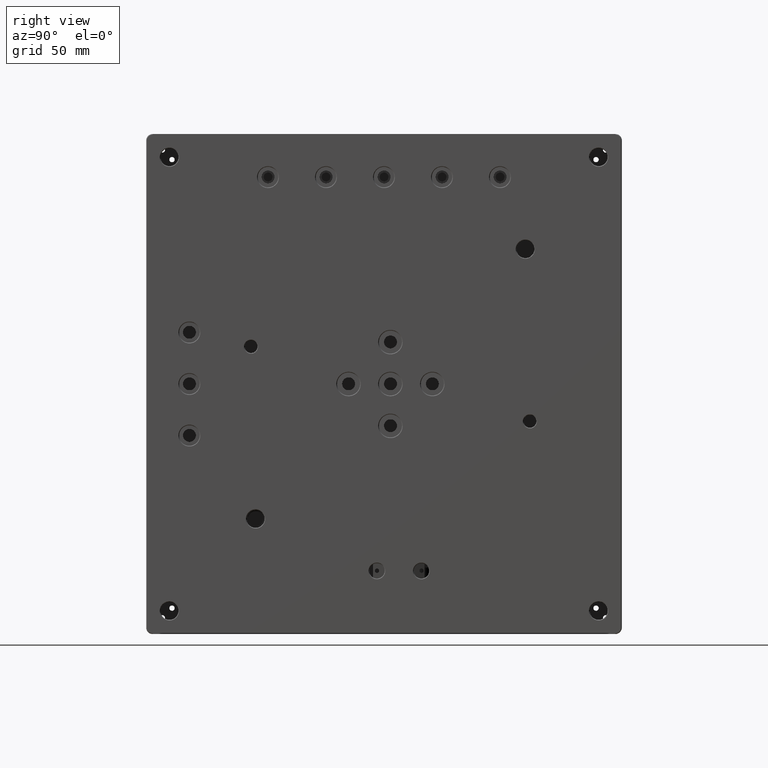
[diagram: clean part render]
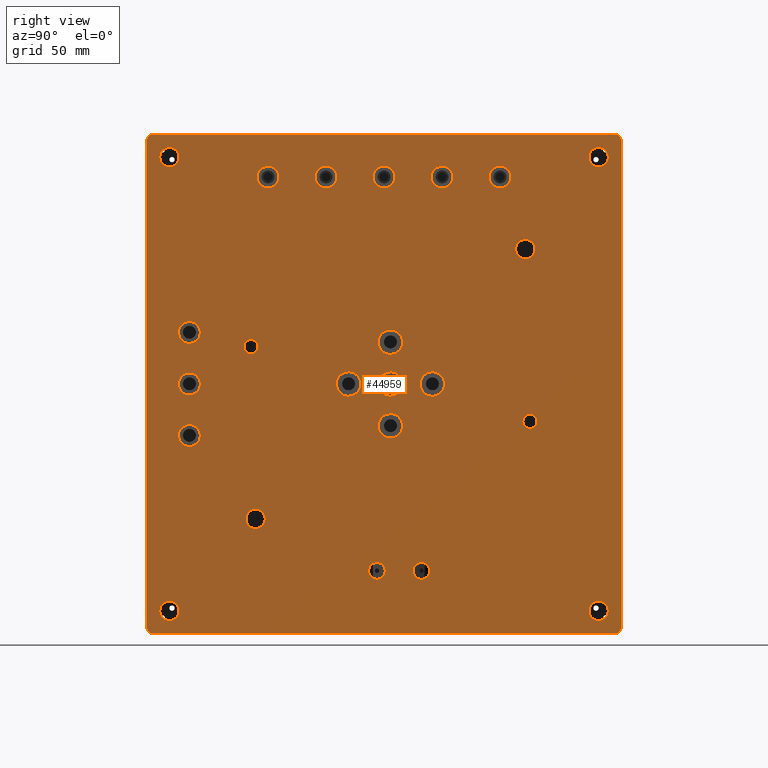
[diagram: same view with one face highlighted and labeled with its STEP entity id]
A machine part, right view. The second image highlights one B-rep face of the part: STEP entity #44959.
In plain terms, the highlighted planar face has unit normal (-1, 0, 0).
Its self-contained STEP definition (entity closure, byte-faithful):
#84 = CARTESIAN_POINT ( 'NONE',  ( -12.30929485513501831, 99.16283872211774053, 324.6518036156059566 ) ) ;
#93 = AXIS2_PLACEMENT_3D ( 'NONE', #40295, #43556, #8223 ) ;
#148 = FACE_BOUND ( 'NONE', #12038, .T. ) ;
#331 = VERTEX_POINT ( 'NONE', #43949 ) ;
#839 = VECTOR ( 'NONE', #15186, 1000.000000000000000 ) ;
#862 = DIRECTION ( 'NONE',  ( 2.312964634635740492E-16, 1.000000000000000000, 0.000000000000000000 ) ) ;
#1100 = CARTESIAN_POINT ( 'NONE',  ( -12.30929485513502897, 4.011035106506220416, 252.5000000000000000 ) ) ;
#1372 = EDGE_CURVE ( 'NONE', #22342, #22342, #3920, .T. ) ;
#1493 = CARTESIAN_POINT ( 'NONE',  ( -12.30929485515219923, -194.4889648935207163, 409.0000000000047180 ) ) ;
#1690 = DIRECTION ( 'NONE',  ( 1.000000000000000000, -2.040851148207906679E-16, 2.040851148208003314E-16 ) ) ;
#2229 = CARTESIAN_POINT ( 'NONE',  ( -12.30929485513500588, 34.51103510651039130, 371.9999999999991473 ) ) ;
#2728 = FACE_BOUND ( 'NONE', #10335, .T. ) ;
#2787 = VERTEX_POINT ( 'NONE', #31001 ) ;
#2901 = CARTESIAN_POINT ( 'NONE',  ( -12.30929485512887922, 108.1947276508600879, 191.0122669485149345 ) ) ;
#3048 = AXIS2_PLACEMENT_3D ( 'NONE', #36163, #18606, #15793 ) ;
#3133 = CARTESIAN_POINT ( 'NONE',  ( -12.30929485513734356, -194.4889648934968420, 220.0000000000046327 ) ) ;
#3190 = FACE_BOUND ( 'NONE', #42252, .T. ) ;
#3322 = CIRCLE ( 'NONE', #27985, 7.499999999999951150 ) ;
#3358 = DIRECTION ( 'NONE',  ( 2.312964634636211343E-16, 1.000000000000000000, 0.000000000000000000 ) ) ;
#3394 = AXIS2_PLACEMENT_3D ( 'NONE', #4408, #7930, #14730 ) ;
#3422 = FACE_BOUND ( 'NONE', #9379, .T. ) ;
#3809 = ORIENTED_EDGE ( 'NONE', *, *, #23868, .F. ) ;
#3920 = CIRCLE ( 'NONE', #36799, 8.500000000000229150 ) ;
#3974 = ORIENTED_EDGE ( 'NONE', *, *, #30062, .T. ) ;
#3992 = EDGE_LOOP ( 'NONE', ( #43173 ) ) ;
#4131 = CIRCLE ( 'NONE', #23612, 6.500000000016825652 ) ;
#4187 = CARTESIAN_POINT ( 'NONE',  ( -12.30929485513729738, 173.5110351065080181, 219.9999999999956231 ) ) ;
#4310 = ORIENTED_EDGE ( 'NONE', *, *, #23667, .F. ) ;
#4390 = CIRCLE ( 'NONE', #28338, 8.500000000000229150 ) ;
#4408 = CARTESIAN_POINT ( 'NONE',  ( -12.30929485513502364, 27.01103510650559159, 219.9999999999992042 ) ) ;
#4786 = EDGE_CURVE ( 'NONE', #34719, #331, #21327, .T. ) ;
#5025 = DIRECTION ( 'NONE',  ( 1.000000000000000000, -1.020425574104014969E-16, 2.165838172753861172E-30 ) ) ;
#5253 = ORIENTED_EDGE ( 'NONE', *, *, #4786, .F. ) ;
#5262 = AXIS2_PLACEMENT_3D ( 'NONE', #33757, #1690, #16672 ) ;
#5653 = CIRCLE ( 'NONE', #8602, 5.499999999983629095 ) ;
#5740 = CARTESIAN_POINT ( 'NONE',  ( -12.30929485511855859, 169.0110351065009411, 30.99999999999558753 ) ) ;
#6085 = ORIENTED_EDGE ( 'NONE', *, *, #15911, .T. ) ;
#6088 = CIRCLE ( 'NONE', #93, 9.499999999999841904 ) ;
#6360 = CARTESIAN_POINT ( 'NONE',  ( -12.30929485513195587, -194.4889648934960746, 31.00000000000449063 ) ) ;
#6620 = VECTOR ( 'NONE', #17424, 1000.000000000000000 ) ;
#6690 = EDGE_LOOP ( 'NONE', ( #6085 ) ) ;
#6705 = FACE_BOUND ( 'NONE', #22396, .T. ) ;
#6864 = DIRECTION ( 'NONE',  ( 1.000000000000000000, -1.020425574103950012E-16, 1.020425574104001657E-16 ) ) ;
#7087 = VERTEX_POINT ( 'NONE', #21142 ) ;
#7385 = VERTEX_POINT ( 'NONE', #39224 ) ;
#7664 = EDGE_LOOP ( 'NONE', ( #42872 ) ) ;
#7704 = LINE ( 'NONE', #4187, #839 ) ;
#7728 = DIRECTION ( 'NONE',  ( 2.040851148208033143E-16, 1.000000000000000000, 0.000000000000000000 ) ) ;
#7779 = CARTESIAN_POINT ( 'NONE',  ( -12.30929485513508759, -169.4889648934901913, 396.0000000000042064 ) ) ;
#7911 = EDGE_CURVE ( 'NONE', #7087, #7087, #6088, .T. ) ;
#7930 = DIRECTION ( 'NONE',  ( 1.000000000000000000, -1.826024711554532681E-16, 4.534738096202632944E-30 ) ) ;
#7977 = AXIS2_PLACEMENT_3D ( 'NONE', #44839, #34761, #37592 ) ;
#8022 = AXIS2_PLACEMENT_3D ( 'NONE', #18555, #30014, #33060 ) ;
#8134 = DIRECTION ( 'NONE',  ( 1.000000000000000000, -1.020425574103996480E-16, 2.499044045485130245E-30 ) ) ;
#8223 = DIRECTION ( 'NONE',  ( 1.826024711554564235E-16, 1.000000000000000000, 0.000000000000000000 ) ) ;
#8539 = CARTESIAN_POINT ( 'NONE',  ( -12.30929485513504495, -152.9889648934927209, 260.0000000000039222 ) ) ;
#8602 = AXIS2_PLACEMENT_3D ( 'NONE', #18930, #36948, #33216 ) ;
#8617 = CARTESIAN_POINT ( 'NONE',  ( -12.30929485509013688, 173.5110351064500946, 30.99999999999550937 ) ) ;
#9073 = EDGE_CURVE ( 'NONE', #17180, #17180, #18109, .T. ) ;
#9075 = EDGE_LOOP ( 'NONE', ( #26233 ) ) ;
#9199 = VERTEX_POINT ( 'NONE', #23471 ) ;
#9379 = EDGE_LOOP ( 'NONE', ( #38044 ) ) ;
#9434 = AXIS2_PLACEMENT_3D ( 'NONE', #10871, #42024, #20714 ) ;
#9488 = VERTEX_POINT ( 'NONE', #2229 ) ;
#9625 = CARTESIAN_POINT ( 'NONE',  ( -12.30929485513502009, -10.48896489348962824, 380.5000000000004547 ) ) ;
#10111 = CARTESIAN_POINT ( 'NONE',  ( -12.30929485514051436, -15.98896489349309391, 75.00000000000025580 ) ) ;
#10228 = FACE_BOUND ( 'NONE', #18412, .T. ) ;
#10335 = EDGE_LOOP ( 'NONE', ( #44573 ) ) ;
#10455 = FACE_BOUND ( 'NONE', #31576, .T. ) ;
#10871 = CARTESIAN_POINT ( 'NONE',  ( -12.30929485512888277, -189.9889648934990873, 31.00000000000450129 ) ) ;
#11261 = ORIENTED_EDGE ( 'NONE', *, *, #35289, .T. ) ;
#11432 = CARTESIAN_POINT ( 'NONE',  ( -12.30929485519854971, -189.9889648934898219, 409.0000000000046612 ) ) ;
#11704 = VERTEX_POINT ( 'NONE', #6360 ) ;
#11751 = EDGE_CURVE ( 'NONE', #32840, #32840, #18476, .T. ) ;
#11792 = CIRCLE ( 'NONE', #42433, 7.500000000000007105 ) ;
#11832 = EDGE_LOOP ( 'NONE', ( #16849 ) ) ;
#12038 = EDGE_LOOP ( 'NONE', ( #37126 ) ) ;
#12042 = CARTESIAN_POINT ( 'NONE',  ( -12.30929485513499877, 163.5110351065013674, 43.99999999999601386 ) ) ;
#12275 = DIRECTION ( 'NONE',  ( 1.000000000000000000, -2.668805347668270758E-16, 6.552720225043325142E-30 ) ) ;
#12315 = AXIS2_PLACEMENT_3D ( 'NONE', #84, #14368, #20922 ) ;
#12996 = VERTEX_POINT ( 'NONE', #13218 ) ;
#13100 = CARTESIAN_POINT ( 'NONE',  ( -12.30929485513499522, 156.0110351065099223, 395.9999999999959641 ) ) ;
#13174 = DIRECTION ( 'NONE',  ( 1.000000000000000000, -2.668805347668179546E-16, 4.003208021502479847E-16 ) ) ;
#13218 = CARTESIAN_POINT ( 'NONE',  ( -12.30929485513502541, -46.98896489348943817, 380.5000000000015348 ) ) ;
#13348 = EDGE_CURVE ( 'NONE', #44052, #44052, #3322, .T. ) ;
#13613 = CARTESIAN_POINT ( 'NONE',  ( -12.30929485513502719, -55.48896489348966554, 380.5000000000015348 ) ) ;
#13903 = EDGE_CURVE ( 'NONE', #43359, #43359, #25786, .T. ) ;
#13915 = CIRCLE ( 'NONE', #38574, 4.500000000007275958 ) ;
#13929 = EDGE_CURVE ( 'NONE', #26051, #26051, #38472, .T. ) ;
#14354 = CARTESIAN_POINT ( 'NONE',  ( -12.30929485513502897, -37.98896489349442618, 210.5000000000007958 ) ) ;
#14368 = DIRECTION ( 'NONE',  ( 1.000000000000000000, -1.156482317317961211E-16, -3.469446951953582141E-16 ) ) ;
#14426 = FACE_BOUND ( 'NONE', #21245, .T. ) ;
#14730 = DIRECTION ( 'NONE',  ( 1.826024711554532188E-16, 1.000000000000000000, 0.000000000000000000 ) ) ;
#15050 = DIRECTION ( 'NONE',  ( 2.040851148207953271E-16, 0.000000000000000000, -1.000000000000000000 ) ) ;
#15085 = AXIS2_PLACEMENT_3D ( 'NONE', #38174, #17323, #20374 ) ;
#15155 = VERTEX_POINT ( 'NONE', #33412 ) ;
#15186 = DIRECTION ( 'NONE',  ( -1.225408946310943922E-14, -1.225408946310909686E-14, -1.000000000000000000 ) ) ;
#15331 = EDGE_CURVE ( 'NONE', #41027, #41027, #5653, .T. ) ;
#15560 = CARTESIAN_POINT ( 'NONE',  ( -12.30929485513504673, -161.4889648934945683, 180.0000000000039222 ) ) ;
#15783 = ORIENTED_EDGE ( 'NONE', *, *, #39130, .F. ) ;
#15793 = DIRECTION ( 'NONE',  ( 3.154042683605922524E-16, 1.000000000000000000, 0.000000000000000000 ) ) ;
#15820 = AXIS2_PLACEMENT_3D ( 'NONE', #29665, #8134, #36685 ) ;
#15825 = EDGE_LOOP ( 'NONE', ( #29871 ) ) ;
#15911 = EDGE_CURVE ( 'NONE', #9199, #9199, #41536, .T. ) ;
#16037 = VERTEX_POINT ( 'NONE', #8539 ) ;
#16339 = CARTESIAN_POINT ( 'NONE',  ( -12.30929485513502541, -5.488964893494418185, 210.5000000000000000 ) ) ;
#16642 = ORIENTED_EDGE ( 'NONE', *, *, #22704, .F. ) ;
#16672 = DIRECTION ( 'NONE',  ( 2.040851148207953271E-16, 0.000000000000000000, -1.000000000000000000 ) ) ;
#16735 = CARTESIAN_POINT ( 'NONE',  ( -12.30929485514053923, 18.51103510650691675, 75.00000000000028422 ) ) ;
#16849 = ORIENTED_EDGE ( 'NONE', *, *, #13929, .F. ) ;
#16938 = AXIS2_PLACEMENT_3D ( 'NONE', #30626, #35048, #31525 ) ;
#17023 = FACE_OUTER_BOUND ( 'NONE', #44631, .T. ) ;
#17180 = VERTEX_POINT ( 'NONE', #14354 ) ;
#17323 = DIRECTION ( 'NONE',  ( 1.000000000000000000, -9.130123557773140418E-17, -1.826024711554509508E-16 ) ) ;
#17424 = DIRECTION ( 'NONE',  ( -1.225408380549088667E-14, 1.225408380549055220E-14, 1.000000000000000000 ) ) ;
#17429 = LINE ( 'NONE', #42230, #30351 ) ;
#17707 = CIRCLE ( 'NONE', #16938, 7.500000000000007105 ) ;
#17713 = FACE_BOUND ( 'NONE', #20233, .T. ) ;
#17755 = CIRCLE ( 'NONE', #8022, 9.499999999999841904 ) ;
#17950 = FACE_BOUND ( 'NONE', #9075, .T. ) ;
#18069 = AXIS2_PLACEMENT_3D ( 'NONE', #13613, #35384, #27896 ) ;
#18109 = CIRCLE ( 'NONE', #15085, 9.500000000000008882 ) ;
#18174 = CARTESIAN_POINT ( 'NONE',  ( -12.30929485513502009, -5.488964893494418185, 220.0000000000000000 ) ) ;
#18412 = EDGE_LOOP ( 'NONE', ( #19168 ) ) ;
#18476 = CIRCLE ( 'NONE', #31206, 6.500000000016825652 ) ;
#18555 = CARTESIAN_POINT ( 'NONE',  ( -12.30929485513503074, -5.488964893493621489, 252.5000000000000000 ) ) ;
#18606 = DIRECTION ( 'NONE',  ( 1.000000000000000000, -3.154042683605962953E-16, -1.577021341802885827E-16 ) ) ;
#18646 = CARTESIAN_POINT ( 'NONE',  ( -12.30929485513683552, -189.9889648934897082, 413.4999999999784563 ) ) ;
#18930 = CARTESIAN_POINT ( 'NONE',  ( -12.30929485513523858, -113.6726574378693613, 248.9877330514850655 ) ) ;
#19168 = ORIENTED_EDGE ( 'NONE', *, *, #32349, .F. ) ;
#19220 = AXIS2_PLACEMENT_3D ( 'NONE', #32774, #44220, #40711 ) ;
#19774 = DIRECTION ( 'NONE',  ( 2.040851148207953271E-16, 1.000000000000000000, 0.000000000000000000 ) ) ;
#19923 = AXIS2_PLACEMENT_3D ( 'NONE', #38944, #6864, #15050 ) ;
#20233 = EDGE_LOOP ( 'NONE', ( #38004 ) ) ;
#20374 = DIRECTION ( 'NONE',  ( -1.826024711554532188E-16, 0.000000000000000000, -1.000000000000000000 ) ) ;
#20587 = DIRECTION ( 'NONE',  ( 1.000000000000000000, -1.020425574104003260E-16, -1.020425574103951491E-16 ) ) ;
#20714 = DIRECTION ( 'NONE',  ( -3.854941057670096839E-16, -1.000000000000000000, 0.000000000000000000 ) ) ;
#20922 = DIRECTION ( 'NONE',  ( -2.312964634635740492E-16, 0.000000000000000000, -1.000000000000000000 ) ) ;
#20926 = LINE ( 'NONE', #3133, #6620 ) ;
#20969 = EDGE_LOOP ( 'NONE', ( #43098 ) ) ;
#20986 = FACE_BOUND ( 'NONE', #38257, .T. ) ;
#21142 = CARTESIAN_POINT ( 'NONE',  ( -12.30929485513502897, 4.011035106504626135, 187.5000000000000000 ) ) ;
#21245 = EDGE_LOOP ( 'NONE', ( #22097 ) ) ;
#21327 = LINE ( 'NONE', #29271, #29531 ) ;
#21430 = VERTEX_POINT ( 'NONE', #43189 ) ;
#21796 = CIRCLE ( 'NONE', #15820, 8.500000000000063949 ) ;
#22058 = CARTESIAN_POINT ( 'NONE',  ( -12.30929485507203758, -102.6407685091080992, 115.3481963843940576 ) ) ;
#22097 = ORIENTED_EDGE ( 'NONE', *, *, #9073, .F. ) ;
#22342 = VERTEX_POINT ( 'NONE', #29832 ) ;
#22396 = EDGE_LOOP ( 'NONE', ( #11261 ) ) ;
#22704 = EDGE_CURVE ( 'NONE', #43025, #11704, #32575, .T. ) ;
#22815 = DIRECTION ( 'NONE',  ( 0.000000000000000000, 1.000000000000000000, 0.000000000000000000 ) ) ;
#22825 = ORIENTED_EDGE ( 'NONE', *, *, #33071, .F. ) ;
#22848 = CARTESIAN_POINT ( 'NONE',  ( -12.30929485513508936, -176.9889648934901345, 396.0000000000042064 ) ) ;
#23258 = CIRCLE ( 'NONE', #3048, 5.499999999979548804 ) ;
#23471 = CARTESIAN_POINT ( 'NONE',  ( -12.30929485513503785, -169.4889648934987463, 44.00000000000418510 ) ) ;
#23612 = AXIS2_PLACEMENT_3D ( 'NONE', #16735, #12275, #45045 ) ;
#23636 = EDGE_CURVE ( 'NONE', #26165, #26165, #30342, .T. ) ;
#23667 = EDGE_CURVE ( 'NONE', #45517, #26011, #13915, .T. ) ;
#23868 = EDGE_CURVE ( 'NONE', #30132, #30132, #46048, .T. ) ;
#23874 = DIRECTION ( 'NONE',  ( -2.312964634635740492E-16, 0.000000000000000000, -1.000000000000000000 ) ) ;
#23987 = VERTEX_POINT ( 'NONE', #2901 ) ;
#24293 = ORIENTED_EDGE ( 'NONE', *, *, #32022, .F. ) ;
#25039 = EDGE_CURVE ( 'NONE', #15155, #15155, #4390, .T. ) ;
#25362 = CARTESIAN_POINT ( 'NONE',  ( -12.30929485514051080, -15.98896489349309391, 68.49999999998343014 ) ) ;
#25387 = DIRECTION ( 'NONE',  ( -1.224610687353160217E-16, -1.000000000000000000, 0.000000000000000000 ) ) ;
#25409 = ORIENTED_EDGE ( 'NONE', *, *, #40790, .F. ) ;
#25786 = CIRCLE ( 'NONE', #26541, 7.499999999998480327 ) ;
#25808 = CARTESIAN_POINT ( 'NONE',  ( -12.30929485513502009, 99.16283872211774053, 317.1518036156059566 ) ) ;
#26011 = VERTEX_POINT ( 'NONE', #43404 ) ;
#26051 = VERTEX_POINT ( 'NONE', #25808 ) ;
#26107 = VERTEX_POINT ( 'NONE', #12042 ) ;
#26152 = EDGE_CURVE ( 'NONE', #32951, #32951, #17755, .T. ) ;
#26165 = VERTEX_POINT ( 'NONE', #29424 ) ;
#26233 = ORIENTED_EDGE ( 'NONE', *, *, #38428, .F. ) ;
#26328 = CIRCLE ( 'NONE', #31562, 4.500000000064119376 ) ;
#26340 = ORIENTED_EDGE ( 'NONE', *, *, #35714, .F. ) ;
#26429 = EDGE_LOOP ( 'NONE', ( #42605 ) ) ;
#26541 = AXIS2_PLACEMENT_3D ( 'NONE', #42453, #38950, #3358 ) ;
#26607 = DIRECTION ( 'NONE',  ( 2.312964634635757748E-16, 1.000000000000000000, 0.000000000000000000 ) ) ;
#26816 = EDGE_LOOP ( 'NONE', ( #27709 ) ) ;
#27335 = VERTEX_POINT ( 'NONE', #16339 ) ;
#27401 = ORIENTED_EDGE ( 'NONE', *, *, #31388, .F. ) ;
#27709 = ORIENTED_EDGE ( 'NONE', *, *, #1372, .F. ) ;
#27826 = DIRECTION ( 'NONE',  ( -1.000000000000000000, 1.156482317317947653E-16, 3.469446951953586086E-16 ) ) ;
#27896 = DIRECTION ( 'NONE',  ( 2.040851148207953271E-16, 1.000000000000000000, 0.000000000000000000 ) ) ;
#27949 = VERTEX_POINT ( 'NONE', #45949 ) ;
#27985 = AXIS2_PLACEMENT_3D ( 'NONE', #22848, #30587, #26607 ) ;
#28010 = FACE_BOUND ( 'NONE', #7664, .T. ) ;
#28094 = ORIENTED_EDGE ( 'NONE', *, *, #42927, .F. ) ;
#28116 = AXIS2_PLACEMENT_3D ( 'NONE', #15560, #5025, #22815 ) ;
#28153 = EDGE_CURVE ( 'NONE', #27335, #27335, #28933, .T. ) ;
#28247 = FACE_BOUND ( 'NONE', #35968, .T. ) ;
#28266 = CARTESIAN_POINT ( 'NONE',  ( -12.30929485512888277, -189.9889648934991442, 26.49999999996795097 ) ) ;
#28338 = AXIS2_PLACEMENT_3D ( 'NONE', #9625, #20587, #31133 ) ;
#28451 = EDGE_LOOP ( 'NONE', ( #37238 ) ) ;
#28698 = FACE_BOUND ( 'NONE', #29617, .T. ) ;
#28816 = DIRECTION ( 'NONE',  ( 1.224610687353160217E-16, 1.000000000000000000, -0.000000000000000000 ) ) ;
#28933 = CIRCLE ( 'NONE', #19220, 9.500000000000008882 ) ;
#29180 = CARTESIAN_POINT ( 'NONE',  ( -12.30929485513503963, -176.9889648934987463, 44.00000000000418510 ) ) ;
#29271 = CARTESIAN_POINT ( 'NONE',  ( -12.30929485513502009, -5.488964893494418185, 413.5000000000047180 ) ) ;
#29424 = CARTESIAN_POINT ( 'NONE',  ( -12.30929485513504673, -152.9889648934946820, 180.0000000000039222 ) ) ;
#29531 = VECTOR ( 'NONE', #28816, 1000.000000000000000 ) ;
#29617 = EDGE_LOOP ( 'NONE', ( #24293 ) ) ;
#29665 = CARTESIAN_POINT ( 'NONE',  ( -12.30929485513504673, -161.4889648934936304, 220.0000000000039506 ) ) ;
#29832 = CARTESIAN_POINT ( 'NONE',  ( -12.30929485513500765, 88.01103510651061868, 380.4999999999982947 ) ) ;
#29861 = ORIENTED_EDGE ( 'NONE', *, *, #35594, .F. ) ;
#29871 = ORIENTED_EDGE ( 'NONE', *, *, #15331, .F. ) ;
#30014 = DIRECTION ( 'NONE',  ( 1.000000000000000000, -9.130123557773061532E-17, -9.130123557772598076E-17 ) ) ;
#30062 = EDGE_CURVE ( 'NONE', #44875, #44875, #11792, .T. ) ;
#30132 = VERTEX_POINT ( 'NONE', #33882 ) ;
#30342 = CIRCLE ( 'NONE', #28116, 8.499999999999896971 ) ;
#30351 = VECTOR ( 'NONE', #25387, 1000.000000000000000 ) ;
#30587 = DIRECTION ( 'NONE',  ( -1.000000000000000000, 2.312964634635757748E-16, -5.135813185032695737E-30 ) ) ;
#30626 = CARTESIAN_POINT ( 'NONE',  ( -12.30929485513500055, 156.0110351065013674, 43.99999999999601386 ) ) ;
#31001 = CARTESIAN_POINT ( 'NONE',  ( -12.30929485510392851, 173.5110351064687677, 408.9999999999955662 ) ) ;
#31133 = DIRECTION ( 'NONE',  ( 2.040851148207953271E-16, 1.000000000000000000, 0.000000000000000000 ) ) ;
#31206 = AXIS2_PLACEMENT_3D ( 'NONE', #10111, #13174, #34929 ) ;
#31293 = FACE_BOUND ( 'NONE', #3992, .T. ) ;
#31388 = EDGE_CURVE ( 'NONE', #11704, #34456, #20926, .T. ) ;
#31525 = DIRECTION ( 'NONE',  ( 2.312964634635740492E-16, 1.000000000000000000, 0.000000000000000000 ) ) ;
#31562 = AXIS2_PLACEMENT_3D ( 'NONE', #11432, #37178, #44422 ) ;
#31576 = EDGE_LOOP ( 'NONE', ( #3809 ) ) ;
#31991 = FACE_BOUND ( 'NONE', #6690, .T. ) ;
#32022 = EDGE_CURVE ( 'NONE', #7385, #7385, #4131, .T. ) ;
#32219 = FACE_BOUND ( 'NONE', #28451, .T. ) ;
#32349 = EDGE_CURVE ( 'NONE', #21430, #21430, #42989, .T. ) ;
#32575 = CIRCLE ( 'NONE', #9434, 4.500000000065535133 ) ;
#32774 = CARTESIAN_POINT ( 'NONE',  ( -12.30929485513502364, -5.488964893494418185, 220.0000000000000000 ) ) ;
#32840 = VERTEX_POINT ( 'NONE', #25362 ) ;
#32951 = VERTEX_POINT ( 'NONE', #1100 ) ;
#33060 = DIRECTION ( 'NONE',  ( 1.826024711554564235E-16, 1.000000000000000000, 0.000000000000000000 ) ) ;
#33071 = EDGE_CURVE ( 'NONE', #26011, #43025, #17429, .T. ) ;
#33216 = DIRECTION ( 'NONE',  ( 3.154042683603583058E-16, 1.000000000000000000, 0.000000000000000000 ) ) ;
#33412 = CARTESIAN_POINT ( 'NONE',  ( -12.30929485513501831, -1.988964893489398200, 380.5000000000004547 ) ) ;
#33740 = CIRCLE ( 'NONE', #18069, 8.500000000000229150 ) ;
#33757 = CARTESIAN_POINT ( 'NONE',  ( -12.30929485513500765, 34.51103510651039130, 380.4999999999993747 ) ) ;
#33765 = CARTESIAN_POINT ( 'NONE',  ( -12.30929485513523680, -108.1726574378857322, 248.9877330514850655 ) ) ;
#33882 = CARTESIAN_POINT ( 'NONE',  ( -12.30929485513503074, -100.4889648934896798, 372.0000000000024443 ) ) ;
#34062 = DIRECTION ( 'NONE',  ( -1.000000000000000000, 3.469446951989048342E-16, -7.703719777706302223E-30 ) ) ;
#34262 = EDGE_LOOP ( 'NONE', ( #25409 ) ) ;
#34456 = VERTEX_POINT ( 'NONE', #1493 ) ;
#34719 = VERTEX_POINT ( 'NONE', #18646 ) ;
#34761 = DIRECTION ( 'NONE',  ( -1.000000000000000000, 1.734723476019176074E-16, -3.851859888962627554E-30 ) ) ;
#34806 = AXIS2_PLACEMENT_3D ( 'NONE', #29180, #36434, #862 ) ;
#34929 = DIRECTION ( 'NONE',  ( 5.337610695299435472E-16, 0.000000000000000000, -1.000000000000000000 ) ) ;
#35048 = DIRECTION ( 'NONE',  ( -1.000000000000000000, 2.312964634635787823E-16, 2.312964634635688230E-16 ) ) ;
#35271 = FACE_BOUND ( 'NONE', #15825, .T. ) ;
#35289 = EDGE_CURVE ( 'NONE', #26107, #26107, #17707, .T. ) ;
#35384 = DIRECTION ( 'NONE',  ( 1.000000000000000000, -2.040851148207953271E-16, 4.998088090970081825E-30 ) ) ;
#35484 = CARTESIAN_POINT ( 'NONE',  ( -12.30929485513499699, 156.0110351065099223, 388.4999999999959641 ) ) ;
#35594 = EDGE_CURVE ( 'NONE', #331, #2787, #42361, .T. ) ;
#35714 = EDGE_CURVE ( 'NONE', #16037, #16037, #39399, .T. ) ;
#35732 = FACE_BOUND ( 'NONE', #26816, .T. ) ;
#35968 = EDGE_LOOP ( 'NONE', ( #26340 ) ) ;
#36163 = CARTESIAN_POINT ( 'NONE',  ( -12.30929485512888100, 102.6947276508805373, 191.0122669485149345 ) ) ;
#36434 = DIRECTION ( 'NONE',  ( -1.000000000000000000, 1.156482317317896623E-16, 1.156482317317844854E-16 ) ) ;
#36685 = DIRECTION ( 'NONE',  ( 0.000000000000000000, 1.000000000000000000, 0.000000000000000000 ) ) ;
#36799 = AXIS2_PLACEMENT_3D ( 'NONE', #41082, #41315, #19774 ) ;
#36948 = DIRECTION ( 'NONE',  ( 1.000000000000000000, -3.154042683599933591E-16, 7.560468789977396826E-30 ) ) ;
#37126 = ORIENTED_EDGE ( 'NONE', *, *, #7911, .F. ) ;
#37178 = DIRECTION ( 'NONE',  ( -1.000000000000000000, 1.734723476022277037E-16, -3.851859888976419134E-30 ) ) ;
#37238 = ORIENTED_EDGE ( 'NONE', *, *, #26152, .F. ) ;
#37592 = DIRECTION ( 'NONE',  ( 0.000000000000000000, -1.000000000000000000, 0.000000000000000000 ) ) ;
#38004 = ORIENTED_EDGE ( 'NONE', *, *, #11751, .F. ) ;
#38044 = ORIENTED_EDGE ( 'NONE', *, *, #25039, .F. ) ;
#38174 = CARTESIAN_POINT ( 'NONE',  ( -12.30929485513502719, -37.98896489349442618, 220.0000000000007958 ) ) ;
#38257 = EDGE_LOOP ( 'NONE', ( #3974 ) ) ;
#38428 = EDGE_CURVE ( 'NONE', #9488, #9488, #39652, .T. ) ;
#38472 = CIRCLE ( 'NONE', #12315, 7.500000000000007105 ) ;
#38574 = AXIS2_PLACEMENT_3D ( 'NONE', #5740, #34062, #43247 ) ;
#38647 = AXIS2_PLACEMENT_3D ( 'NONE', #40725, #39808, #7728 ) ;
#38780 = FACE_BOUND ( 'NONE', #20969, .T. ) ;
#38944 = CARTESIAN_POINT ( 'NONE',  ( -12.30929485513503252, -100.4889648934896798, 380.5000000000026716 ) ) ;
#38950 = DIRECTION ( 'NONE',  ( 1.000000000000000000, -1.156482317318105918E-16, 2.888894916582022463E-30 ) ) ;
#39010 = FACE_BOUND ( 'NONE', #34262, .T. ) ;
#39130 = EDGE_CURVE ( 'NONE', #23987, #23987, #23258, .T. ) ;
#39224 = CARTESIAN_POINT ( 'NONE',  ( -12.30929485514053923, 25.01103510652374240, 75.00000000000028422 ) ) ;
#39399 = CIRCLE ( 'NONE', #38647, 8.499999999999896971 ) ;
#39483 = FACE_BOUND ( 'NONE', #26429, .T. ) ;
#39652 = CIRCLE ( 'NONE', #5262, 8.500000000000229150 ) ;
#39808 = DIRECTION ( 'NONE',  ( 1.000000000000000000, -1.020425574104016572E-16, 2.499044045485228336E-30 ) ) ;
#40156 = DIRECTION ( 'NONE',  ( -1.000000000000000000, 1.224610687353160217E-16, 5.657618544130739138E-21 ) ) ;
#40295 = CARTESIAN_POINT ( 'NONE',  ( -12.30929485513503074, -5.488964893495215769, 187.5000000000000000 ) ) ;
#40711 = DIRECTION ( 'NONE',  ( -1.826024711554532188E-16, 0.000000000000000000, -1.000000000000000000 ) ) ;
#40725 = CARTESIAN_POINT ( 'NONE',  ( -12.30929485513504673, -161.4889648934926356, 260.0000000000039222 ) ) ;
#40790 = EDGE_CURVE ( 'NONE', #12996, #12996, #33740, .T. ) ;
#41027 = VERTEX_POINT ( 'NONE', #33765 ) ;
#41082 = CARTESIAN_POINT ( 'NONE',  ( -12.30929485513500943, 79.51103510651039130, 380.4999999999982947 ) ) ;
#41315 = DIRECTION ( 'NONE',  ( 1.000000000000000000, -1.020425574103999932E-16, -1.020425574103951614E-16 ) ) ;
#41536 = CIRCLE ( 'NONE', #34806, 7.500000000000007105 ) ;
#42024 = DIRECTION ( 'NONE',  ( -1.000000000000000000, 3.469446951955787501E-16, -7.703719777558596957E-30 ) ) ;
#42230 = CARTESIAN_POINT ( 'NONE',  ( -12.30929485513502009, -5.488964893494418185, 26.49999999999552713 ) ) ;
#42252 = EDGE_LOOP ( 'NONE', ( #15783 ) ) ;
#42282 = FACE_BOUND ( 'NONE', #11832, .T. ) ;
#42361 = CIRCLE ( 'NONE', #7977, 4.500000000007275958 ) ;
#42433 = AXIS2_PLACEMENT_3D ( 'NONE', #13100, #27826, #23874 ) ;
#42453 = CARTESIAN_POINT ( 'NONE',  ( -12.30929485507203935, -110.1407685091065787, 115.3481963843940576 ) ) ;
#42495 = ORIENTED_EDGE ( 'NONE', *, *, #45545, .F. ) ;
#42605 = ORIENTED_EDGE ( 'NONE', *, *, #43974, .F. ) ;
#42872 = ORIENTED_EDGE ( 'NONE', *, *, #28153, .F. ) ;
#42927 = EDGE_CURVE ( 'NONE', #2787, #45517, #7704, .T. ) ;
#42989 = CIRCLE ( 'NONE', #3394, 9.500000000000008882 ) ;
#43025 = VERTEX_POINT ( 'NONE', #28266 ) ;
#43098 = ORIENTED_EDGE ( 'NONE', *, *, #13348, .T. ) ;
#43173 = ORIENTED_EDGE ( 'NONE', *, *, #23636, .F. ) ;
#43189 = CARTESIAN_POINT ( 'NONE',  ( -12.30929485513502186, 36.51103510650560224, 219.9999999999992042 ) ) ;
#43247 = DIRECTION ( 'NONE',  ( -3.854941057720005110E-16, -1.000000000000000000, 0.000000000000000000 ) ) ;
#43359 = VERTEX_POINT ( 'NONE', #22058 ) ;
#43404 = CARTESIAN_POINT ( 'NONE',  ( -12.30929485508261756, 169.0110351065008274, 26.50000000003532818 ) ) ;
#43556 = DIRECTION ( 'NONE',  ( 1.000000000000000000, -9.130123557773061532E-17, -9.130123557772585750E-17 ) ) ;
#43949 = CARTESIAN_POINT ( 'NONE',  ( -12.30929485513235555, 169.0110351065103202, 413.4999999999740226 ) ) ;
#43974 = EDGE_CURVE ( 'NONE', #27949, #27949, #21796, .T. ) ;
#44052 = VERTEX_POINT ( 'NONE', #7779 ) ;
#44124 = DIRECTION ( 'NONE',  ( -1.224610687353160217E-16, -1.000000000000000000, 0.000000000000000000 ) ) ;
#44220 = DIRECTION ( 'NONE',  ( 1.000000000000000000, -9.130123557773114534E-17, -1.826024711554509754E-16 ) ) ;
#44228 = AXIS2_PLACEMENT_3D ( 'NONE', #18174, #40156, #44124 ) ;
#44422 = DIRECTION ( 'NONE',  ( 0.000000000000000000, -1.000000000000000000, 0.000000000000000000 ) ) ;
#44573 = ORIENTED_EDGE ( 'NONE', *, *, #13903, .F. ) ;
#44631 = EDGE_LOOP ( 'NONE', ( #42495, #27401, #16642, #22825, #4310, #28094, #29861, #5253 ) ) ;
#44839 = CARTESIAN_POINT ( 'NONE',  ( -12.30929485513276944, 169.0110351065102350, 408.9999999999956799 ) ) ;
#44875 = VERTEX_POINT ( 'NONE', #35484 ) ;
#44959 = ADVANCED_FACE ( 'NONE', ( #28010, #39483, #28247, #10455, #39010, #3422, #17950, #35732, #2728, #42282, #17713, #148, #10228, #32219, #31991, #38780, #6705, #20986, #35271, #3190, #17023, #14426, #28698, #31293 ), #45556, .F. ) ;
#45045 = DIRECTION ( 'NONE',  ( 2.668805347649717736E-16, 1.000000000000000000, 0.000000000000000000 ) ) ;
#45517 = VERTEX_POINT ( 'NONE', #8617 ) ;
#45545 = EDGE_CURVE ( 'NONE', #34456, #34719, #26328, .T. ) ;
#45556 = PLANE ( 'NONE',  #44228 ) ;
#45949 = CARTESIAN_POINT ( 'NONE',  ( -12.30929485513504673, -152.9889648934935735, 220.0000000000039506 ) ) ;
#46048 = CIRCLE ( 'NONE', #19923, 8.500000000000229150 ) ;